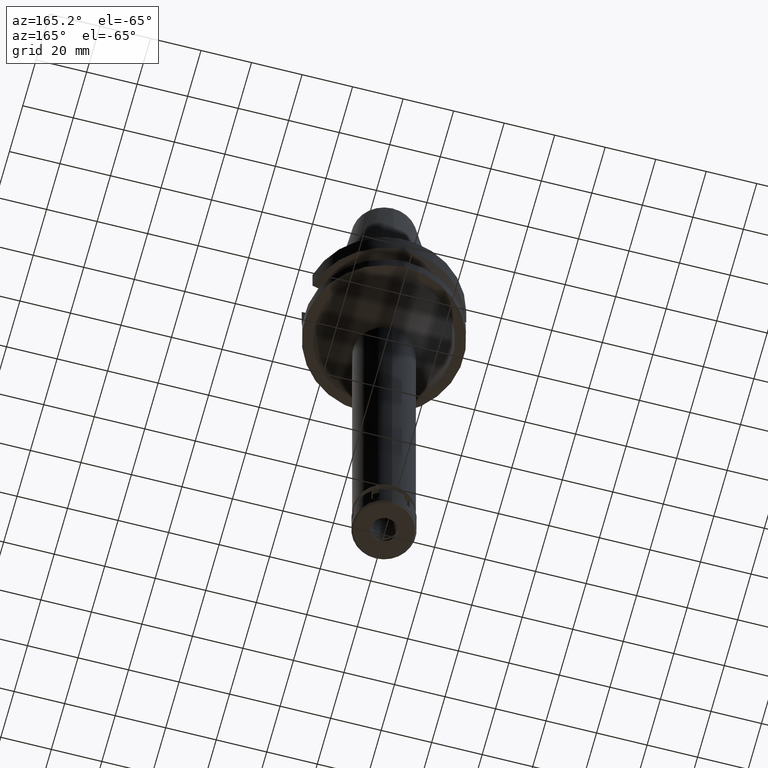
[diagram: clean part render]
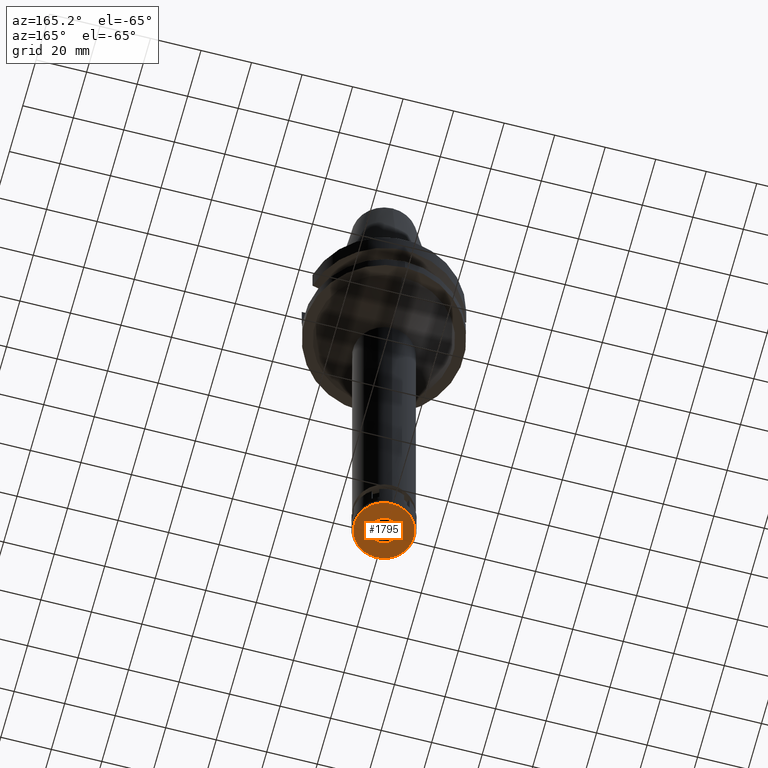
[diagram: same view with one face highlighted and labeled with its STEP entity id]
A machine part, auxiliary view. The second image highlights one B-rep face of the part: STEP entity #1795.
In plain terms, the highlighted planar face has unit normal (0, 0, -1).
Its self-contained STEP definition (entity closure, byte-faithful):
#29 = DIRECTION ( 'NONE',  ( 0.0000000000000000000, -1.000000000000000000, 0.0000000000000000000 ) ) ;
#127 = EDGE_LOOP ( 'NONE', ( #1925, #2808 ) ) ;
#268 = ORIENTED_EDGE ( 'NONE', *, *, #931, .F. ) ;
#346 = ORIENTED_EDGE ( 'NONE', *, *, #1868, .F. ) ;
#350 = DIRECTION ( 'NONE',  ( 0.0000000000000000000, 0.0000000000000000000, -1.000000000000000000 ) ) ;
#406 = DIRECTION ( 'NONE',  ( 0.0000000000000000000, -1.000000000000000000, 0.0000000000000000000 ) ) ;
#440 = DIRECTION ( 'NONE',  ( 0.0000000000000000000, 1.000000000000000000, 0.0000000000000000000 ) ) ;
#656 = CARTESIAN_POINT ( 'NONE',  ( 0.0000000000000000000, 0.0000000000000000000, -11.00000000000000000 ) ) ;
#660 = CARTESIAN_POINT ( 'NONE',  ( 0.0000000000000000000, 0.0000000000000000000, -11.00000000000000000 ) ) ;
#697 = DIRECTION ( 'NONE',  ( 0.0000000000000000000, 0.0000000000000000000, 1.000000000000000000 ) ) ;
#779 = EDGE_CURVE ( 'NONE', #1028, #2370, #1693, .T. ) ;
#781 = CARTESIAN_POINT ( 'NONE',  ( 0.0000000000000000000, 11.79999999999999893, -11.00000000000000000 ) ) ;
#931 = EDGE_CURVE ( 'NONE', #1989, #2837, #3049, .T. ) ;
#1028 = VERTEX_POINT ( 'NONE', #781 ) ;
#1106 = AXIS2_PLACEMENT_3D ( 'NONE', #1190, #1208, #3459 ) ;
#1190 = CARTESIAN_POINT ( 'NONE',  ( 0.0000000000000000000, 0.0000000000000000000, -11.00000000000000000 ) ) ;
#1208 = DIRECTION ( 'NONE',  ( 0.0000000000000000000, 0.0000000000000000000, -1.000000000000000000 ) ) ;
#1221 = AXIS2_PLACEMENT_3D ( 'NONE', #656, #2157, #2435 ) ;
#1343 = AXIS2_PLACEMENT_3D ( 'NONE', #2598, #350, #29 ) ;
#1379 = EDGE_CURVE ( 'NONE', #2370, #1028, #1988, .T. ) ;
#1522 = DIRECTION ( 'NONE',  ( 0.0000000000000000000, 0.0000000000000000000, -1.000000000000000000 ) ) ;
#1693 = CIRCLE ( 'NONE', #2106, 11.79999999999999893 ) ;
#1795 = ADVANCED_FACE ( 'NONE', ( #2300, #2557 ), #3404, .T. ) ;
#1868 = EDGE_CURVE ( 'NONE', #2837, #1989, #3000, .T. ) ;
#1925 = ORIENTED_EDGE ( 'NONE', *, *, #779, .F. ) ;
#1971 = EDGE_LOOP ( 'NONE', ( #346, #268 ) ) ;
#1988 = CIRCLE ( 'NONE', #1221, 11.79999999999999893 ) ;
#1989 = VERTEX_POINT ( 'NONE', #2656 ) ;
#2106 = AXIS2_PLACEMENT_3D ( 'NONE', #660, #697, #440 ) ;
#2157 = DIRECTION ( 'NONE',  ( 0.0000000000000000000, 0.0000000000000000000, 1.000000000000000000 ) ) ;
#2162 = AXIS2_PLACEMENT_3D ( 'NONE', #2653, #1522, #406 ) ;
#2300 = FACE_OUTER_BOUND ( 'NONE', #127, .T. ) ;
#2370 = VERTEX_POINT ( 'NONE', #3164 ) ;
#2435 = DIRECTION ( 'NONE',  ( 0.0000000000000000000, -1.000000000000000000, 0.0000000000000000000 ) ) ;
#2557 = FACE_BOUND ( 'NONE', #1971, .T. ) ;
#2598 = CARTESIAN_POINT ( 'NONE',  ( 0.0000000000000000000, 0.0000000000000000000, -11.00000000000000000 ) ) ;
#2653 = CARTESIAN_POINT ( 'NONE',  ( 0.0000000000000000000, 0.0000000000000000000, -11.00000000000000000 ) ) ;
#2656 = CARTESIAN_POINT ( 'NONE',  ( 0.0000000000000000000, -5.250000000000000000, -11.00000000000000000 ) ) ;
#2661 = CARTESIAN_POINT ( 'NONE',  ( 0.0000000000000000000, 5.250000000000000000, -11.00000000000000000 ) ) ;
#2808 = ORIENTED_EDGE ( 'NONE', *, *, #1379, .F. ) ;
#2837 = VERTEX_POINT ( 'NONE', #2661 ) ;
#3000 = CIRCLE ( 'NONE', #1106, 5.250000000000000000 ) ;
#3049 = CIRCLE ( 'NONE', #2162, 5.250000000000000000 ) ;
#3164 = CARTESIAN_POINT ( 'NONE',  ( 0.0000000000000000000, -11.79999999999999893, -11.00000000000000000 ) ) ;
#3404 = PLANE ( 'NONE',  #1343 ) ;
#3459 = DIRECTION ( 'NONE',  ( 0.0000000000000000000, 1.000000000000000000, 0.0000000000000000000 ) ) ;